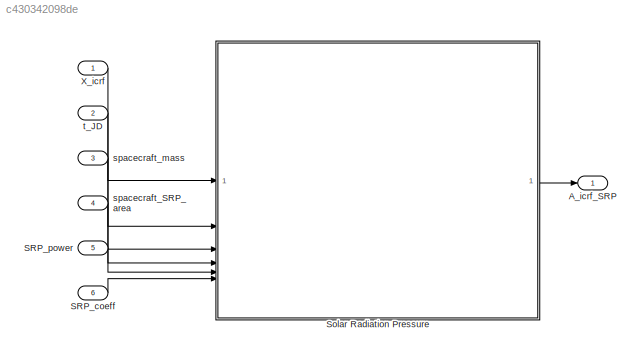
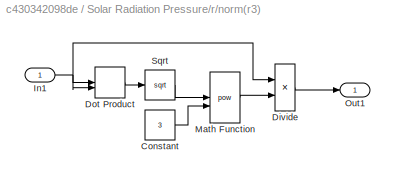
MODEL slx_c430342098de
KIND model
CONFIG AbsTol = auto
CONFIG EnableMultiTasking = off
CONFIG FixedStep = auto
CONFIG MaxStep = auto
CONFIG MinStep = auto
CONFIG RelTol = 1e-3
CONFIG SampleTimeConstraint = Unconstrained
CONFIG SolverName = VariableStepAuto
CONFIG StartTime = 0.0
CONFIG StopTime = 10.0
BLOCK [Outport] A_icrf_SRP
BLOCK [Inport] SRP_coeff
  Port = 6
BLOCK [Inport] SRP_power
  Port = 5
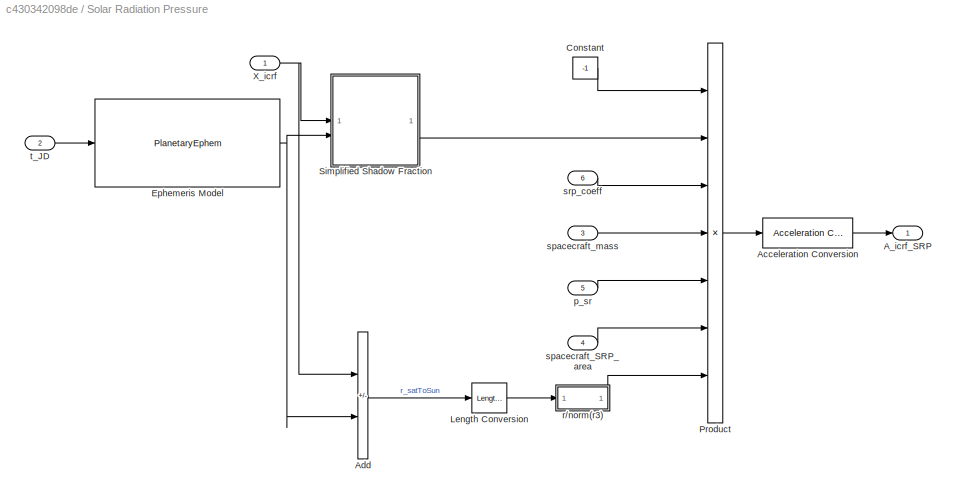
BLOCK [SubSystem] Solar Radiation Pressure
BLOCK [Outport] Solar Radiation Pressure/A_icrf_SRP
BLOCK [Reference] Solar Radiation Pressure/Acceleration Conversion  REF=aerolibconvert2/Acceleration Conversion
  SourceBlock = aerolibconvert2/Acceleration Conversion
  SourceType = Acceleration Conversion
BLOCK [Sum] Solar Radiation Pressure/Add
  IconShape = rectangular
  Inputs = -+
BLOCK [Constant] Solar Radiation Pressure/Constant
  Value = -1
BLOCK [PlanetaryEphem] Solar Radiation Pressure/Ephemeris Model
  AttributesFormatString = %<nCenter> to %<nTarget>\nJPL Model: %<de>
  outputVelocity = off
  target = Sun
BLOCK [Reference] Solar Radiation Pressure/Length Conversion  REF=aerolibconvert2/Length Conversion
  SourceBlock = aerolibconvert2/Length Conversion
  SourceType = Length Conversion
BLOCK [Product] Solar Radiation Pressure/Product
  Inputs = *****/*
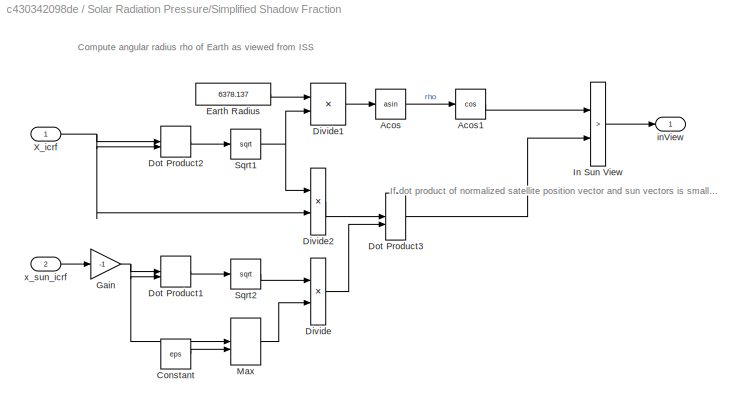
BLOCK [SubSystem] Solar Radiation Pressure/Simplified Shadow Fraction
BLOCK [Trigonometry] Solar Radiation Pressure/Simplified Shadow Fraction/Acos
  Operator = asin
BLOCK [Trigonometry] Solar Radiation Pressure/Simplified Shadow Fraction/Acos1
  Operator = cos
BLOCK [Constant] Solar Radiation Pressure/Simplified Shadow Fraction/Constant
  Value = eps
BLOCK [Product] Solar Radiation Pressure/Simplified Shadow Fraction/Divide
  Inputs = */
BLOCK [Product] Solar Radiation Pressure/Simplified Shadow Fraction/Divide1
  Inputs = */
BLOCK [Product] Solar Radiation Pressure/Simplified Shadow Fraction/Divide2
  Inputs = */
BLOCK [DotProduct] Solar Radiation Pressure/Simplified Shadow Fraction/Dot Product1
  OutDataTypeStr = Inherit: Inherit via internal rule
BLOCK [DotProduct] Solar Radiation Pressure/Simplified Shadow Fraction/Dot Product2
  OutDataTypeStr = Inherit: Inherit via internal rule
BLOCK [DotProduct] Solar Radiation Pressure/Simplified Shadow Fraction/Dot Product3
  OutDataTypeStr = Inherit: Inherit via internal rule
BLOCK [Constant] Solar Radiation Pressure/Simplified Shadow Fraction/Earth Radius
  SampleTime = 0
  Value = 6378.137
  VectorParams1D = off
BLOCK [Gain] Solar Radiation Pressure/Simplified Shadow Fraction/Gain
  Gain = -1
BLOCK [RelationalOperator] Solar Radiation Pressure/Simplified Shadow Fraction/In Sun View
  InputSameDT = off
  Operator = >
  OutDataTypeStr = boolean
  RndMeth = Simplest
  ZeroCross = off
BLOCK [MinMax] Solar Radiation Pressure/Simplified Shadow Fraction/Max
  Function = max
  Inputs = 2
BLOCK [Sqrt] Solar Radiation Pressure/Simplified Shadow Fraction/Sqrt1
BLOCK [Sqrt] Solar Radiation Pressure/Simplified Shadow Fraction/Sqrt2
BLOCK [Inport] Solar Radiation Pressure/Simplified Shadow Fraction/X_icrf
BLOCK [Outport] Solar Radiation Pressure/Simplified Shadow Fraction/inView
  SampleTime = 0
BLOCK [Inport] Solar Radiation Pressure/Simplified Shadow Fraction/x_sun_icrf
  Port = 2
  SampleTime = 0
BLOCK [Inport] Solar Radiation Pressure/X_icrf
BLOCK [Inport] Solar Radiation Pressure/p_sr
  Port = 5
BLOCK [SubSystem] Solar Radiation Pressure/r//norm(r3)
BLOCK [Constant] Solar Radiation Pressure/r//norm(r3)/Constant
  Value = 3
BLOCK [Product] Solar Radiation Pressure/r//norm(r3)/Divide
  Inputs = */
BLOCK [DotProduct] Solar Radiation Pressure/r//norm(r3)/Dot Product
  OutDataTypeStr = Inherit: Inherit via internal rule
BLOCK [Inport] Solar Radiation Pressure/r//norm(r3)/In1
BLOCK [Math] Solar Radiation Pressure/r//norm(r3)/Math Function
  Operator = pow
BLOCK [Outport] Solar Radiation Pressure/r//norm(r3)/Out1
BLOCK [Sqrt] Solar Radiation Pressure/r//norm(r3)/Sqrt
BLOCK [Inport] Solar Radiation Pressure/spacecraft_SRP_area
  Port = 4
BLOCK [Inport] Solar Radiation Pressure/spacecraft_mass
  Port = 3
BLOCK [Inport] Solar Radiation Pressure/srp_coeff
  Port = 6
BLOCK [Inport] Solar Radiation Pressure/t_JD
  Port = 2
BLOCK [Inport] X_icrf
BLOCK [Inport] spacecraft_SRP_area
  Port = 4
BLOCK [Inport] spacecraft_mass
  Port = 3
BLOCK [Inport] t_JD
  Port = 2
ANNOTATION Solar Radiation Pressure/Simplified Shadow Fraction: Compute angular radius rho of Earth as viewed from ISS
ANNOTATION Solar Radiation Pressure/Simplified Shadow Fraction: If dot product of normalized satellite position vector and sun vectors is smaller than cos rho then Earth is not blocking sun.
LINE SRP_coeff:1 -> Solar Radiation Pressure:6
LINE SRP_power:1 -> Solar Radiation Pressure:5
LINE Solar Radiation Pressure/Acceleration Conversion:1 -> Solar Radiation Pressure/A_icrf_SRP:1
LINE Solar Radiation Pressure/Add:1 -> Solar Radiation Pressure/Length Conversion:1
LINE Solar Radiation Pressure/Constant:1 -> Solar Radiation Pressure/Product:1
NET Solar Radiation Pressure/Ephemeris Model:1 -> Solar Radiation Pressure/Add:2, Solar Radiation Pressure/Simplified Shadow Fraction:2
LINE Solar Radiation Pressure/Length Conversion:1 -> Solar Radiation Pressure/r//norm(r3):1
LINE Solar Radiation Pressure/Product:1 -> Solar Radiation Pressure/Acceleration Conversion:1
LINE Solar Radiation Pressure/Simplified Shadow Fraction/Acos1:1 -> Solar Radiation Pressure/Simplified Shadow Fraction/In Sun View:1
LINE Solar Radiation Pressure/Simplified Shadow Fraction/Acos:1 -> Solar Radiation Pressure/Simplified Shadow Fraction/Acos1:1
LINE Solar Radiation Pressure/Simplified Shadow Fraction/Constant:1 -> Solar Radiation Pressure/Simplified Shadow Fraction/Max:2
LINE Solar Radiation Pressure/Simplified Shadow Fraction/Divide1:1 -> Solar Radiation Pressure/Simplified Shadow Fraction/Acos:1
LINE Solar Radiation Pressure/Simplified Shadow Fraction/Divide2:1 -> Solar Radiation Pressure/Simplified Shadow Fraction/Dot Product3:1
LINE Solar Radiation Pressure/Simplified Shadow Fraction/Divide:1 -> Solar Radiation Pressure/Simplified Shadow Fraction/Dot Product3:2
LINE Solar Radiation Pressure/Simplified Shadow Fraction/Dot Product1:1 -> Solar Radiation Pressure/Simplified Shadow Fraction/Sqrt2:1
LINE Solar Radiation Pressure/Simplified Shadow Fraction/Dot Product2:1 -> Solar Radiation Pressure/Simplified Shadow Fraction/Sqrt1:1
LINE Solar Radiation Pressure/Simplified Shadow Fraction/Dot Product3:1 -> Solar Radiation Pressure/Simplified Shadow Fraction/In Sun View:2
LINE Solar Radiation Pressure/Simplified Shadow Fraction/Earth Radius:1 -> Solar Radiation Pressure/Simplified Shadow Fraction/Divide1:1
NET Solar Radiation Pressure/Simplified Shadow Fraction/Gain:1 -> Solar Radiation Pressure/Simplified Shadow Fraction/Dot Product1:1, Solar Radiation Pressure/Simplified Shadow Fraction/Dot Product1:2, Solar Radiation Pressure/Simplified Shadow Fraction/Max:1
LINE Solar Radiation Pressure/Simplified Shadow Fraction/In Sun View:1 -> Solar Radiation Pressure/Simplified Shadow Fraction/inView:1
LINE Solar Radiation Pressure/Simplified Shadow Fraction/Max:1 -> Solar Radiation Pressure/Simplified Shadow Fraction/Divide:2
NET Solar Radiation Pressure/Simplified Shadow Fraction/Sqrt1:1 -> Solar Radiation Pressure/Simplified Shadow Fraction/Divide1:2, Solar Radiation Pressure/Simplified Shadow Fraction/Divide2:1
LINE Solar Radiation Pressure/Simplified Shadow Fraction/Sqrt2:1 -> Solar Radiation Pressure/Simplified Shadow Fraction/Divide:1
NET Solar Radiation Pressure/Simplified Shadow Fraction/X_icrf:1 -> Solar Radiation Pressure/Simplified Shadow Fraction/Divide2:2, Solar Radiation Pressure/Simplified Shadow Fraction/Dot Product2:1, Solar Radiation Pressure/Simplified Shadow Fraction/Dot Product2:2
LINE Solar Radiation Pressure/Simplified Shadow Fraction/x_sun_icrf:1 -> Solar Radiation Pressure/Simplified Shadow Fraction/Gain:1
LINE Solar Radiation Pressure/Simplified Shadow Fraction:1 -> Solar Radiation Pressure/Product:2
NET Solar Radiation Pressure/X_icrf:1 -> Solar Radiation Pressure/Add:1, Solar Radiation Pressure/Simplified Shadow Fraction:1
LINE Solar Radiation Pressure/p_sr:1 -> Solar Radiation Pressure/Product:5
LINE Solar Radiation Pressure/r//norm(r3)/Constant:1 -> Solar Radiation Pressure/r//norm(r3)/Math Function:2
LINE Solar Radiation Pressure/r//norm(r3)/Divide:1 -> Solar Radiation Pressure/r//norm(r3)/Out1:1
LINE Solar Radiation Pressure/r//norm(r3)/Dot Product:1 -> Solar Radiation Pressure/r//norm(r3)/Sqrt:1
NET Solar Radiation Pressure/r//norm(r3)/In1:1 -> Solar Radiation Pressure/r//norm(r3)/Divide:1, Solar Radiation Pressure/r//norm(r3)/Dot Product:1, Solar Radiation Pressure/r//norm(r3)/Dot Product:2
LINE Solar Radiation Pressure/r//norm(r3)/Math Function:1 -> Solar Radiation Pressure/r//norm(r3)/Divide:2
LINE Solar Radiation Pressure/r//norm(r3)/Sqrt:1 -> Solar Radiation Pressure/r//norm(r3)/Math Function:1
LINE Solar Radiation Pressure/r//norm(r3):1 -> Solar Radiation Pressure/Product:7
LINE Solar Radiation Pressure/spacecraft_SRP_area:1 -> Solar Radiation Pressure/Product:6
LINE Solar Radiation Pressure/spacecraft_mass:1 -> Solar Radiation Pressure/Product:4
LINE Solar Radiation Pressure/srp_coeff:1 -> Solar Radiation Pressure/Product:3
LINE Solar Radiation Pressure/t_JD:1 -> Solar Radiation Pressure/Ephemeris Model:1
LINE Solar Radiation Pressure:1 -> A_icrf_SRP:1
LINE X_icrf:1 -> Solar Radiation Pressure:1
LINE spacecraft_SRP_area:1 -> Solar Radiation Pressure:4
LINE spacecraft_mass:1 -> Solar Radiation Pressure:3
LINE t_JD:1 -> Solar Radiation Pressure:2
note: NET lines group one-source signal fan-out (src -> all destinations, sorted); 1:1 wires keep LINE
